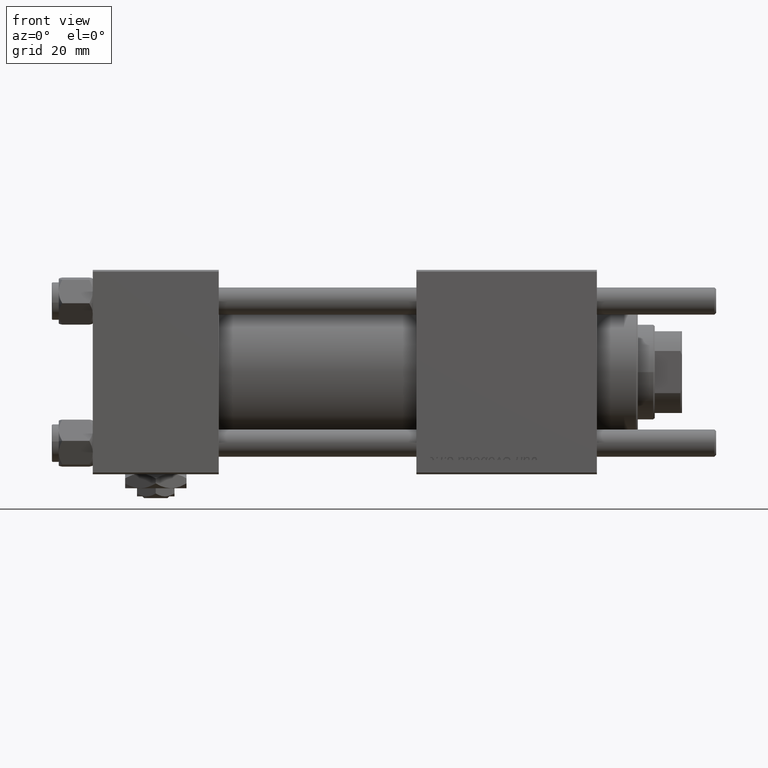
[diagram: clean part render]
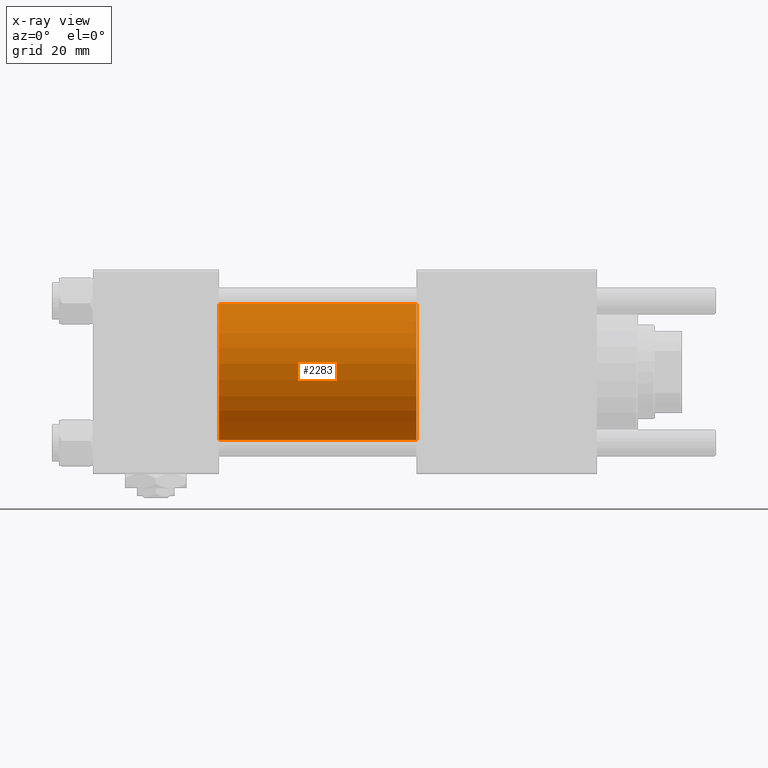
[diagram: x-ray — body ghosted, one internal face saturated and labeled with its STEP entity id]
A machine part, front view, then the same camera in x-ray: the body is ghosted and one INTERNAL B-rep face — a face not visible from any outside direction — is saturated and labeled: STEP entity #2283.
In plain terms, the highlighted cylindrical surface (partial cylindrical patch) has radius 20 mm, axis along (-1, -0, -0).
Its self-contained STEP definition (entity closure, byte-faithful):
#2061 = DIRECTION ( 'NONE',  ( 0.000000000000000000, 0.000000000000000000, -1.000000000000000000 ) ) ;
#2283 = ADVANCED_FACE ( 'NONE', ( #33167 ), #23407, .F. ) ;
#3981 = AXIS2_PLACEMENT_3D ( 'NONE', #55372, #18047, #32562 ) ;
#4435 = AXIS2_PLACEMENT_3D ( 'NONE', #42615, #27835, #2061 ) ;
#5048 = VERTEX_POINT ( 'NONE', #22796 ) ;
#5594 = CARTESIAN_POINT ( 'NONE',  ( 95.00000000000000000, -1.527916156705046464E-16, -20.00000000000000000 ) ) ;
#5616 = CARTESIAN_POINT ( 'NONE',  ( 95.00000000000000000, -2.602085213965210642E-15, 0.000000000000000000 ) ) ;
#12625 = AXIS2_PLACEMENT_3D ( 'NONE', #5616, #23112, #36435 ) ;
#15863 = VERTEX_POINT ( 'NONE', #51171 ) ;
#17223 = VERTEX_POINT ( 'NONE', #53598 ) ;
#18047 = DIRECTION ( 'NONE',  ( 1.000000000000000000, 0.000000000000000000, 0.000000000000000000 ) ) ;
#19513 = DIRECTION ( 'NONE',  ( -1.000000000000000000, -0.000000000000000000, -0.000000000000000000 ) ) ;
#22508 = DIRECTION ( 'NONE',  ( -1.000000000000000000, -0.000000000000000000, -0.000000000000000000 ) ) ;
#22796 = CARTESIAN_POINT ( 'NONE',  ( 95.00000000000000000, -2.602085213965210642E-15, 20.00000000000000000 ) ) ;
#23112 = DIRECTION ( 'NONE',  ( -1.000000000000000000, -0.000000000000000000, -0.000000000000000000 ) ) ;
#23390 = CIRCLE ( 'NONE', #4435, 20.00000000000000000 ) ;
#23407 = CYLINDRICAL_SURFACE ( 'NONE', #12625, 20.00000000000000000 ) ;
#23659 = ORIENTED_EDGE ( 'NONE', *, *, #24086, .T. ) ;
#24030 = EDGE_CURVE ( 'NONE', #15863, #17223, #44994, .T. ) ;
#24086 = EDGE_CURVE ( 'NONE', #5048, #15863, #37088, .T. ) ;
#25131 = LINE ( 'NONE', #43178, #51511 ) ;
#25764 = VECTOR ( 'NONE', #22508, 1000.000000000000000 ) ;
#26939 = VERTEX_POINT ( 'NONE', #27420 ) ;
#27420 = CARTESIAN_POINT ( 'NONE',  ( 37.00000000000000000, -2.602085213965210642E-15, 20.00000000000000000 ) ) ;
#27835 = DIRECTION ( 'NONE',  ( 1.000000000000000000, 0.000000000000000000, 0.000000000000000000 ) ) ;
#30774 = EDGE_CURVE ( 'NONE', #5048, #26939, #25131, .T. ) ;
#32242 = ORIENTED_EDGE ( 'NONE', *, *, #24030, .T. ) ;
#32562 = DIRECTION ( 'NONE',  ( 0.000000000000000000, 0.000000000000000000, -1.000000000000000000 ) ) ;
#33167 = FACE_OUTER_BOUND ( 'NONE', #53692, .T. ) ;
#36435 = DIRECTION ( 'NONE',  ( 0.000000000000000000, 0.000000000000000000, 1.000000000000000000 ) ) ;
#37088 = CIRCLE ( 'NONE', #3981, 20.00000000000000000 ) ;
#42615 = CARTESIAN_POINT ( 'NONE',  ( 37.00000000000000000, -2.602085213965210642E-15, 0.000000000000000000 ) ) ;
#43178 = CARTESIAN_POINT ( 'NONE',  ( 95.00000000000000000, -2.602085213965210642E-15, 20.00000000000000000 ) ) ;
#43678 = EDGE_CURVE ( 'NONE', #26939, #17223, #23390, .T. ) ;
#44994 = LINE ( 'NONE', #5594, #25764 ) ;
#51171 = CARTESIAN_POINT ( 'NONE',  ( 95.00000000000000000, -1.527916156705046464E-16, -20.00000000000000000 ) ) ;
#51511 = VECTOR ( 'NONE', #19513, 1000.000000000000000 ) ;
#53598 = CARTESIAN_POINT ( 'NONE',  ( 37.00000000000000000, -1.527916156705046464E-16, -20.00000000000000000 ) ) ;
#53692 = EDGE_LOOP ( 'NONE', ( #23659, #32242, #56233, #54282 ) ) ;
#54282 = ORIENTED_EDGE ( 'NONE', *, *, #30774, .F. ) ;
#55372 = CARTESIAN_POINT ( 'NONE',  ( 95.00000000000000000, -2.602085213965210642E-15, 0.000000000000000000 ) ) ;
#56233 = ORIENTED_EDGE ( 'NONE', *, *, #43678, .F. ) ;